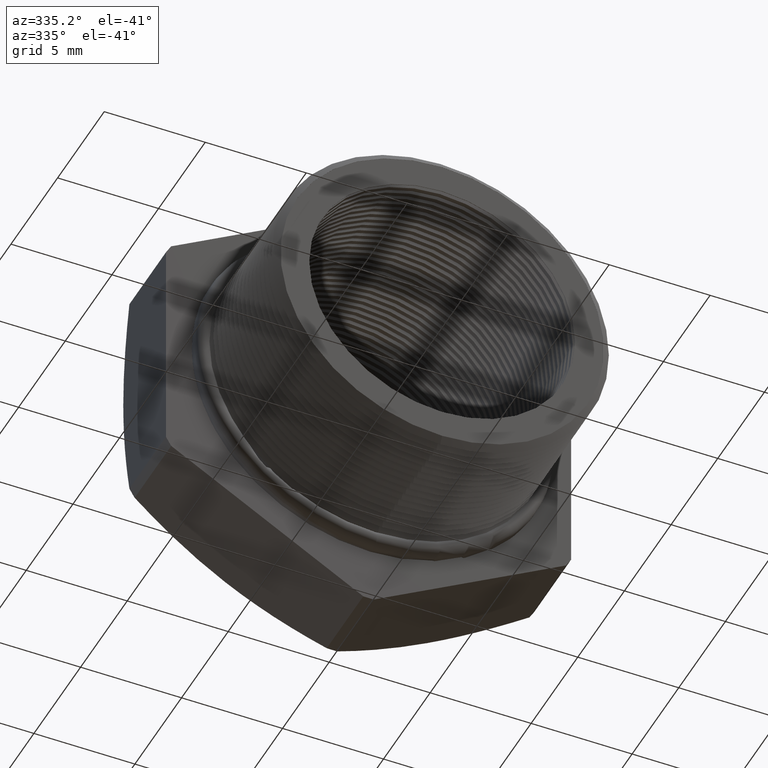
[diagram: clean part render]
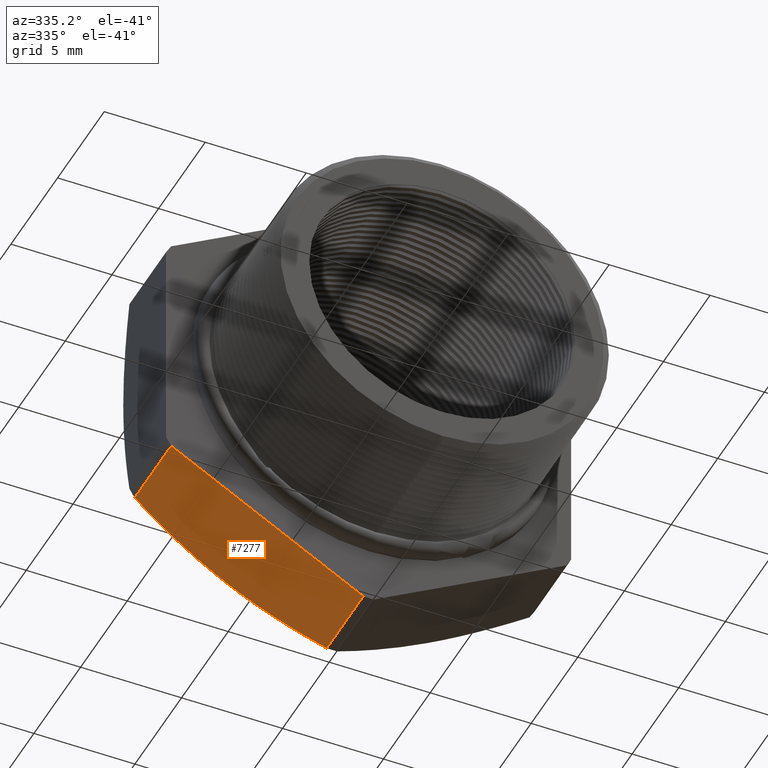
[diagram: same view with one face highlighted and labeled with its STEP entity id]
A machine part, auxiliary view. The second image highlights one B-rep face of the part: STEP entity #7277.
In plain terms, the highlighted planar face has unit normal (-0.5, 0, -0.866).
Its self-contained STEP definition (entity closure, byte-faithful):
#2486 = DIRECTION ( 'NONE',  ( -0.0000000000000000000, -1.000000000000000000, -0.0000000000000000000 ) ) ;
#3757 = CARTESIAN_POINT ( 'NONE',  ( -0.01026000026703716000, 0.2275548905829479800, -0.4501830987437449600 ) ) ;
#3811 = CARTESIAN_POINT ( 'NONE',  ( -0.1975000000000000900, 0.4075548905829479200, -0.3420800344948533000 ) ) ;
#3849 = DIRECTION ( 'NONE',  ( 0.0000000000000000000, 1.000000000000000000, 0.0000000000000000000 ) ) ;
#3850 = VECTOR ( 'NONE', #3849, 39.37007874015748100 ) ;
#3851 = CARTESIAN_POINT ( 'NONE',  ( -0.01026000026703678500, 0.0000000000000000000, -0.4501830987437449000 ) ) ;
#3852 = LINE ( 'NONE', #3851, #3850 ) ;
#3870 = CARTESIAN_POINT ( 'NONE',  ( -0.01026000026703699200, 0.3817680770869766300, -0.4501830987437449000 ) ) ;
#3902 = CARTESIAN_POINT ( 'NONE',  ( -0.3847399997329631900, 0.3817680770869766300, -0.2339769702459613400 ) ) ;
#3977 = VECTOR ( 'NONE', #2486, 39.37007874015748100 ) ;
#3978 = CARTESIAN_POINT ( 'NONE',  ( -0.3847399997329631900, 0.0000000000000000000, -0.2339769702459612600 ) ) ;
#3979 = LINE ( 'NONE', #3978, #3977 ) ;
#4040 = CARTESIAN_POINT ( 'NONE',  ( -0.3847399997329630200, 0.2275548905829479800, -0.2339769702459614800 ) ) ;
#4057 = DIRECTION ( 'NONE',  ( 0.8660254037844386000, 0.0000000000000000000, -0.5000000000000002200 ) ) ;
#4058 = VECTOR ( 'NONE', #4057, 39.37007874015747400 ) ;
#4059 = CARTESIAN_POINT ( 'NONE',  ( 0.03874999999999989600, 0.2275548905829479800, -0.4784790355909022700 ) ) ;
#4060 = LINE ( 'NONE', #4059, #4058 ) ;
#4062 = DIRECTION ( 'NONE',  ( -0.8660254037844386000, 0.0000000000000000000, 0.5000000000000001100 ) ) ;
#4063 = DIRECTION ( 'NONE',  ( -0.5000000000000001100, 0.0000000000000000000, -0.8660254037844386000 ) ) ;
#4064 = AXIS2_PLACEMENT_3D ( 'NONE', #4065, #4063, #4062 ) ;
#4065 = CARTESIAN_POINT ( 'NONE',  ( -0.3949999999999999600, 0.4075548905829479700, -0.2280533563299020300 ) ) ;
#4066 = PLANE ( 'NONE',  #4064 ) ;
#4067 = FACE_OUTER_BOUND ( 'NONE', #7278, .T. ) ;
#4099 = CARTESIAN_POINT ( 'NONE',  ( -0.01026000026703699200, 0.3817680770869766300, -0.4501830987437449000 ) ) ;
#4100 = CARTESIAN_POINT ( 'NONE',  ( -0.04113558834110785800, 0.3897502881590466700, -0.4323570696577919700 ) ) ;
#4101 = CARTESIAN_POINT ( 'NONE',  ( -0.07225680565382704100, 0.3962764420413619800, -0.4143892264647846000 ) ) ;
#4102 = CARTESIAN_POINT ( 'NONE',  ( -0.1350411223813805000, 0.4052207272773966600, -0.3781406843012451400 ) ) ;
#4103 = CARTESIAN_POINT ( 'NONE',  ( -0.1663280206471309000, 0.4075548905829478600, -0.3600771851654055400 ) ) ;
#4104 = CARTESIAN_POINT ( 'NONE',  ( -0.1975000000000000900, 0.4075548905829479200, -0.3420800344948533000 ) ) ;
#4105 = B_SPLINE_CURVE_WITH_KNOTS ( 'NONE', 3,
 ( #4104, #4103, #4102, #4101, #4100, #4099 ),
 .UNSPECIFIED., .F., .F.,
 ( 4, 2, 4 ),
 ( 0.005520192186429575900, 0.008258536476824122200, 0.01099688076721866900 ),
 .UNSPECIFIED. ) ;
#4106 = CARTESIAN_POINT ( 'NONE',  ( -0.1975000000000000900, 0.4075548905829479200, -0.3420800344948533000 ) ) ;
#4107 = CARTESIAN_POINT ( 'NONE',  ( -0.2289182622552070900, 0.4075548905829479700, -0.3239406923243390300 ) ) ;
#4108 = CARTESIAN_POINT ( 'NONE',  ( -0.2602199223343859000, 0.4051865378565924200, -0.3058686704515429200 ) ) ;
#4109 = CARTESIAN_POINT ( 'NONE',  ( -0.3226184986981742700, 0.3962912005447679100, -0.2698428355908604200 ) ) ;
#4110 = CARTESIAN_POINT ( 'NONE',  ( -0.3537166105170324600, 0.3897884989263426000, -0.2518883323609534800 ) ) ;
#4111 = CARTESIAN_POINT ( 'NONE',  ( -0.3847399997329631900, 0.3817680770869766300, -0.2339769702459613400 ) ) ;
#4112 = B_SPLINE_CURVE_WITH_KNOTS ( 'NONE', 3,
 ( #4111, #4110, #4109, #4108, #4107, #4106 ),
 .UNSPECIFIED., .F., .F.,
 ( 4, 2, 4 ),
 ( 2.335025902589511500E-007, 0.002760212844509917500, 0.005520192186429575900 ),
 .UNSPECIFIED. ) ;
#7099 = VERTEX_POINT ( 'NONE', #3757 ) ;
#7142 = VERTEX_POINT ( 'NONE', #3811 ) ;
#7153 = EDGE_CURVE ( 'NONE', #7099, #7173, #3852, .T. ) ;
#7173 = VERTEX_POINT ( 'NONE', #3870 ) ;
#7189 = VERTEX_POINT ( 'NONE', #3902 ) ;
#7243 = EDGE_CURVE ( 'NONE', #7189, #7244, #3979, .T. ) ;
#7244 = VERTEX_POINT ( 'NONE', #4040 ) ;
#7260 = ORIENTED_EDGE ( 'NONE', *, *, #7153, .F. ) ;
#7261 = ORIENTED_EDGE ( 'NONE', *, *, #7262, .F. ) ;
#7262 = EDGE_CURVE ( 'NONE', #7244, #7099, #4060, .T. ) ;
#7277 = ADVANCED_FACE ( 'NONE', ( #4067 ), #4066, .T. ) ;
#7278 = EDGE_LOOP ( 'NONE', ( #7279, #7280, #7282, #7260, #7261 ) ) ;
#7279 = ORIENTED_EDGE ( 'NONE', *, *, #7243, .F. ) ;
#7280 = ORIENTED_EDGE ( 'NONE', *, *, #7281, .T. ) ;
#7281 = EDGE_CURVE ( 'NONE', #7189, #7142, #4112, .T. ) ;
#7282 = ORIENTED_EDGE ( 'NONE', *, *, #7283, .T. ) ;
#7283 = EDGE_CURVE ( 'NONE', #7142, #7173, #4105, .T. ) ;